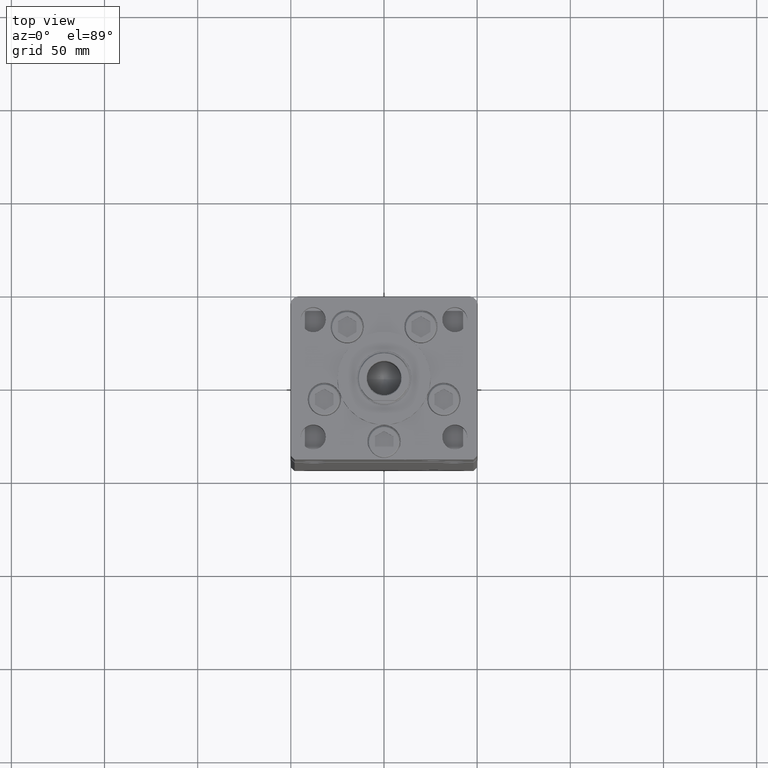
[diagram: clean part render]
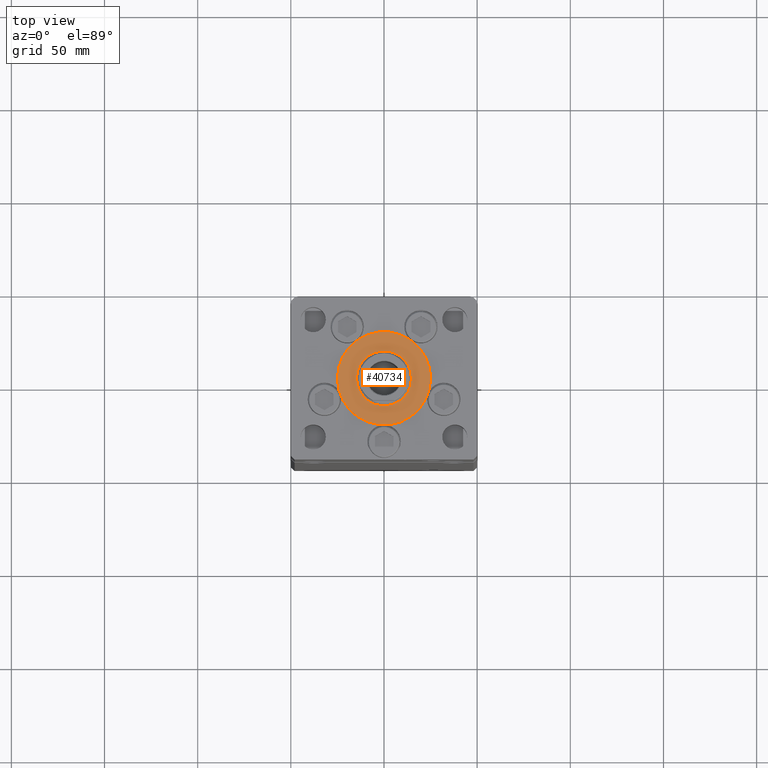
[diagram: same view with one face highlighted and labeled with its STEP entity id]
A machine part, top view. The second image highlights one B-rep face of the part: STEP entity #40734.
In plain terms, the highlighted planar face has unit normal (0, 0, 1).
Its self-contained STEP definition (entity closure, byte-faithful):
#1391 = DIRECTION ( 'NONE',  ( 0.000000000000000000, 0.000000000000000000, 1.000000000000000000 ) ) ;
#1905 = FACE_BOUND ( 'NONE', #49661, .T. ) ;
#2394 = AXIS2_PLACEMENT_3D ( 'NONE', #40898, #8949, #36872 ) ;
#2965 = AXIS2_PLACEMENT_3D ( 'NONE', #45365, #20646, #45898 ) ;
#7992 = EDGE_LOOP ( 'NONE', ( #10919, #8083 ) ) ;
#8083 = ORIENTED_EDGE ( 'NONE', *, *, #32672, .T. ) ;
#8949 = DIRECTION ( 'NONE',  ( 0.000000000000000000, 0.000000000000000000, 1.000000000000000000 ) ) ;
#10006 = FACE_OUTER_BOUND ( 'NONE', #7992, .T. ) ;
#10919 = ORIENTED_EDGE ( 'NONE', *, *, #43519, .T. ) ;
#16241 = EDGE_CURVE ( 'NONE', #26971, #20344, #28144, .T. ) ;
#18739 = CIRCLE ( 'NONE', #35882, 14.75000000000000178 ) ;
#20344 = VERTEX_POINT ( 'NONE', #23255 ) ;
#20387 = AXIS2_PLACEMENT_3D ( 'NONE', #41976, #1391, #26376 ) ;
#20646 = DIRECTION ( 'NONE',  ( 0.000000000000000000, 0.000000000000000000, 1.000000000000000000 ) ) ;
#23044 = AXIS2_PLACEMENT_3D ( 'NONE', #36088, #47388, #40113 ) ;
#23255 = CARTESIAN_POINT ( 'NONE',  ( 14.75000000000000178, -6.938893903907228378E-15, 2.000000000000000000 ) ) ;
#24919 = DIRECTION ( 'NONE',  ( 1.000000000000000000, 0.000000000000000000, 0.000000000000000000 ) ) ;
#26376 = DIRECTION ( 'NONE',  ( 1.000000000000000000, 0.000000000000000000, -0.000000000000000000 ) ) ;
#26971 = VERTEX_POINT ( 'NONE', #35003 ) ;
#28144 = CIRCLE ( 'NONE', #2394, 14.75000000000000178 ) ;
#29477 = DIRECTION ( 'NONE',  ( 0.000000000000000000, 0.000000000000000000, 1.000000000000000000 ) ) ;
#32672 = EDGE_CURVE ( 'NONE', #48584, #49858, #37299, .T. ) ;
#35003 = CARTESIAN_POINT ( 'NONE',  ( -14.75000000000000178, -5.132539875164881787E-15, 2.000000000000000000 ) ) ;
#35882 = AXIS2_PLACEMENT_3D ( 'NONE', #37542, #29477, #24919 ) ;
#36088 = CARTESIAN_POINT ( 'NONE',  ( 0.000000000000000000, -6.938893903907228378E-15, 2.000000000000000000 ) ) ;
#36872 = DIRECTION ( 'NONE',  ( 1.000000000000000000, 0.000000000000000000, 0.000000000000000000 ) ) ;
#37129 = ORIENTED_EDGE ( 'NONE', *, *, #46761, .F. ) ;
#37299 = CIRCLE ( 'NONE', #2965, 25.00000000000000000 ) ;
#37542 = CARTESIAN_POINT ( 'NONE',  ( 0.000000000000000000, -6.938893903907228378E-15, 2.000000000000000000 ) ) ;
#38484 = CIRCLE ( 'NONE', #23044, 25.00000000000000000 ) ;
#38899 = CARTESIAN_POINT ( 'NONE',  ( -25.00000000000000000, -6.938893903907228378E-15, 2.000000000000000000 ) ) ;
#40113 = DIRECTION ( 'NONE',  ( 1.000000000000000000, 0.000000000000000000, 0.000000000000000000 ) ) ;
#40734 = ADVANCED_FACE ( 'NONE', ( #1905, #10006 ), #50581, .T. ) ;
#40898 = CARTESIAN_POINT ( 'NONE',  ( 0.000000000000000000, -6.938893903907228378E-15, 2.000000000000000000 ) ) ;
#41976 = CARTESIAN_POINT ( 'NONE',  ( 0.000000000000000000, -6.938893903907228378E-15, 2.000000000000000000 ) ) ;
#43519 = EDGE_CURVE ( 'NONE', #49858, #48584, #38484, .T. ) ;
#45365 = CARTESIAN_POINT ( 'NONE',  ( 0.000000000000000000, -6.938893903907228378E-15, 2.000000000000000000 ) ) ;
#45898 = DIRECTION ( 'NONE',  ( 1.000000000000000000, 0.000000000000000000, 0.000000000000000000 ) ) ;
#46761 = EDGE_CURVE ( 'NONE', #20344, #26971, #18739, .T. ) ;
#47388 = DIRECTION ( 'NONE',  ( 0.000000000000000000, 0.000000000000000000, 1.000000000000000000 ) ) ;
#48584 = VERTEX_POINT ( 'NONE', #49490 ) ;
#48745 = ORIENTED_EDGE ( 'NONE', *, *, #16241, .F. ) ;
#49490 = CARTESIAN_POINT ( 'NONE',  ( 25.00000000000000000, -3.877276906038844941E-15, 2.000000000000000000 ) ) ;
#49661 = EDGE_LOOP ( 'NONE', ( #37129, #48745 ) ) ;
#49858 = VERTEX_POINT ( 'NONE', #38899 ) ;
#50581 = PLANE ( 'NONE',  #20387 ) ;